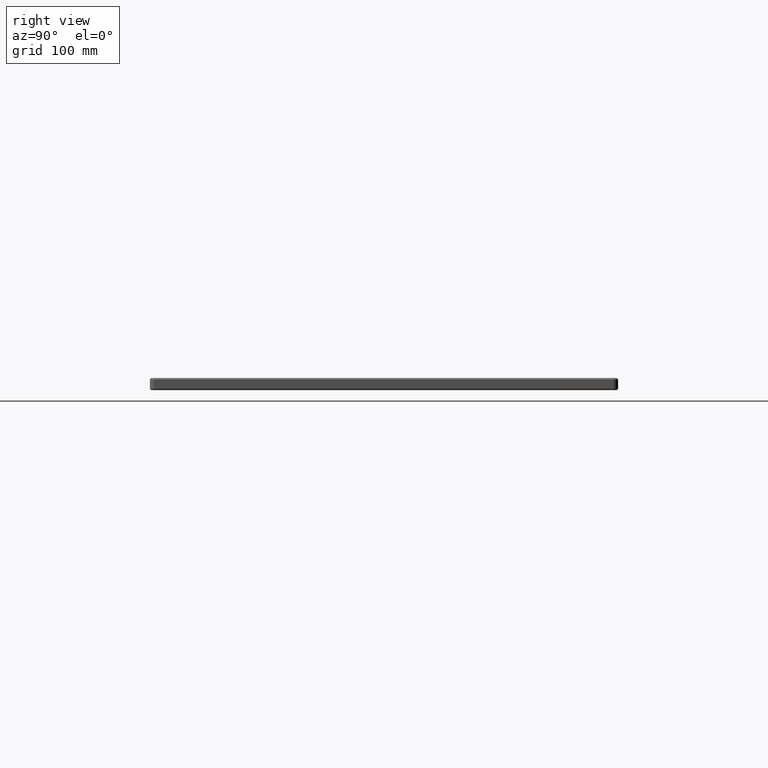
[diagram: clean part render]
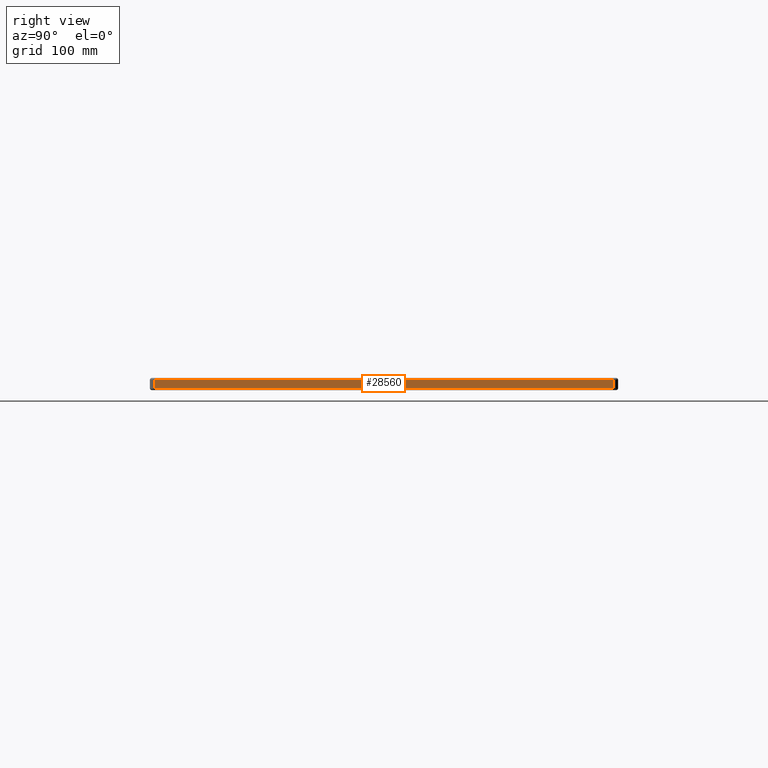
[diagram: same view with one face highlighted and labeled with its STEP entity id]
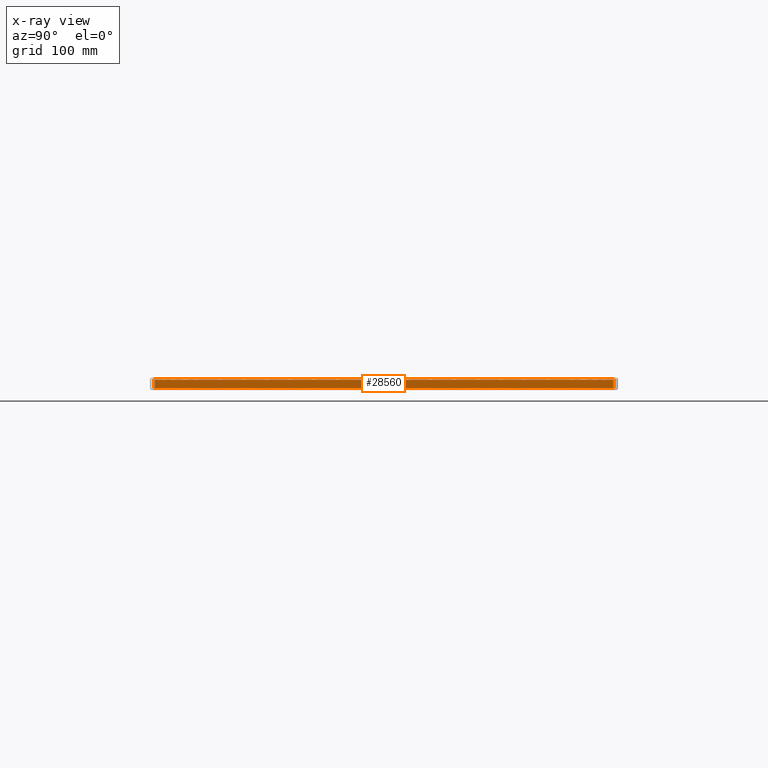
[diagram: x-ray of the same camera — body ghosted, the highlighted face saturated]
A machine part, right view. The second image highlights one B-rep face of the part: STEP entity #28560.
The next image is the same camera in x-ray: the body ghosted, the highlighted face saturated — about 0% of this face is hidden behind the body in this view.
In plain terms, the highlighted planar face has unit normal (1, 0, 0).
Its self-contained STEP definition (entity closure, byte-faithful):
#2566 = VECTOR ( 'NONE', #21651, 1000.000000000000000 ) ;
#3614 = LINE ( 'NONE', #25650, #28168 ) ;
#4345 = EDGE_CURVE ( 'NONE', #25507, #19835, #5440, .T. ) ;
#5440 = LINE ( 'NONE', #13799, #2566 ) ;
#5652 = VERTEX_POINT ( 'NONE', #8605 ) ;
#7175 = DIRECTION ( 'NONE',  ( 0.0000000000000000000, -0.0000000000000000000, -1.000000000000000000 ) ) ;
#7493 = VERTEX_POINT ( 'NONE', #17261 ) ;
#7902 = ORIENTED_EDGE ( 'NONE', *, *, #17521, .T. ) ;
#8605 = CARTESIAN_POINT ( 'NONE',  ( 600.0000000000000000, 4.999999999999999100, -11.00000000000000000 ) ) ;
#9143 = ORIENTED_EDGE ( 'NONE', *, *, #4345, .T. ) ;
#9277 = CARTESIAN_POINT ( 'NONE',  ( 600.0000000000000000, 0.0000000000000000000, -13.00000000000000000 ) ) ;
#10594 = ORIENTED_EDGE ( 'NONE', *, *, #17480, .T. ) ;
#11906 = DIRECTION ( 'NONE',  ( 1.000000000000000000, 0.0000000000000000000, 0.0000000000000000000 ) ) ;
#13655 = FACE_OUTER_BOUND ( 'NONE', #24751, .T. ) ;
#13799 = CARTESIAN_POINT ( 'NONE',  ( 600.0000000000000000, 5.000000000000004400, -2.000000000000000000 ) ) ;
#13929 = VECTOR ( 'NONE', #30617, 1000.000000000000000 ) ;
#14333 = DIRECTION ( 'NONE',  ( 0.0000000000000000000, 0.0000000000000000000, -1.000000000000000000 ) ) ;
#15434 = CARTESIAN_POINT ( 'NONE',  ( 600.0000000000000000, 495.0000000000000000, -13.00000000000000000 ) ) ;
#17261 = CARTESIAN_POINT ( 'NONE',  ( 600.0000000000000000, 495.0000000000000000, -11.00000000000000000 ) ) ;
#17480 = EDGE_CURVE ( 'NONE', #7493, #25507, #31090, .T. ) ;
#17521 = EDGE_CURVE ( 'NONE', #19835, #5652, #3614, .T. ) ;
#19324 = LINE ( 'NONE', #19383, #25018 ) ;
#19383 = CARTESIAN_POINT ( 'NONE',  ( 600.0000000000000000, 0.0000000000000000000, -11.00000000000000000 ) ) ;
#19835 = VERTEX_POINT ( 'NONE', #29983 ) ;
#21651 = DIRECTION ( 'NONE',  ( -0.0000000000000000000, -1.000000000000000000, 0.0000000000000000000 ) ) ;
#24751 = EDGE_LOOP ( 'NONE', ( #7902, #31880, #10594, #9143 ) ) ;
#25018 = VECTOR ( 'NONE', #29871, 1000.000000000000000 ) ;
#25507 = VERTEX_POINT ( 'NONE', #27836 ) ;
#25650 = CARTESIAN_POINT ( 'NONE',  ( 600.0000000000000000, 4.999999999999999100, -13.00000000000000000 ) ) ;
#25812 = AXIS2_PLACEMENT_3D ( 'NONE', #9277, #11906, #14333 ) ;
#27836 = CARTESIAN_POINT ( 'NONE',  ( 600.0000000000000000, 495.0000000000000000, -2.000000000000000000 ) ) ;
#28168 = VECTOR ( 'NONE', #7175, 1000.000000000000000 ) ;
#28560 = ADVANCED_FACE ( 'NONE', ( #13655 ), #32723, .T. ) ;
#29871 = DIRECTION ( 'NONE',  ( -0.0000000000000000000, 1.000000000000000000, 0.0000000000000000000 ) ) ;
#29983 = CARTESIAN_POINT ( 'NONE',  ( 600.0000000000000000, 4.999999999999999100, -2.000000000000000000 ) ) ;
#30617 = DIRECTION ( 'NONE',  ( 0.0000000000000000000, 0.0000000000000000000, 1.000000000000000000 ) ) ;
#31090 = LINE ( 'NONE', #15434, #13929 ) ;
#31880 = ORIENTED_EDGE ( 'NONE', *, *, #33604, .T. ) ;
#32723 = PLANE ( 'NONE',  #25812 ) ;
#33604 = EDGE_CURVE ( 'NONE', #5652, #7493, #19324, .T. ) ;